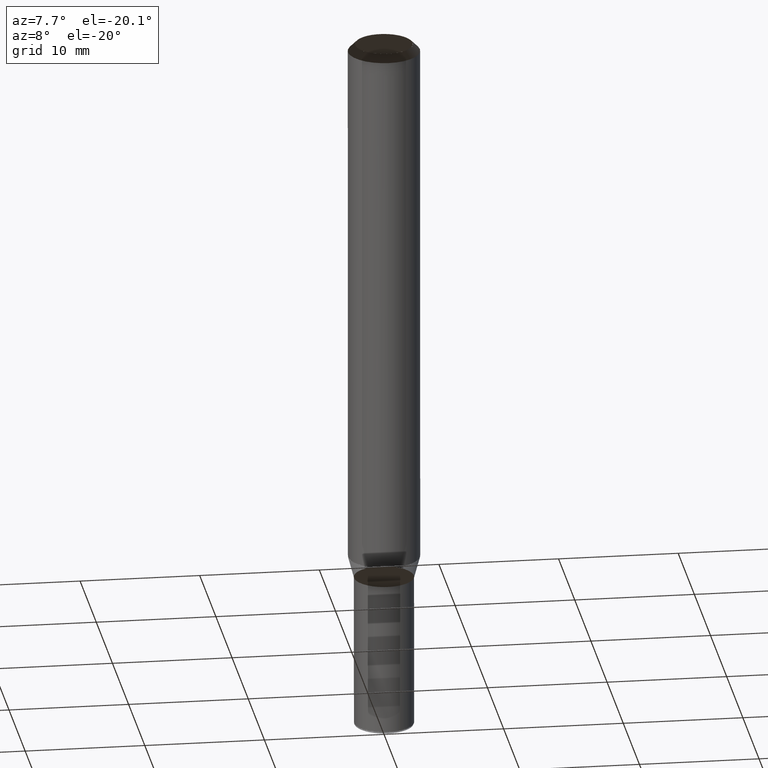
[diagram: clean part render]
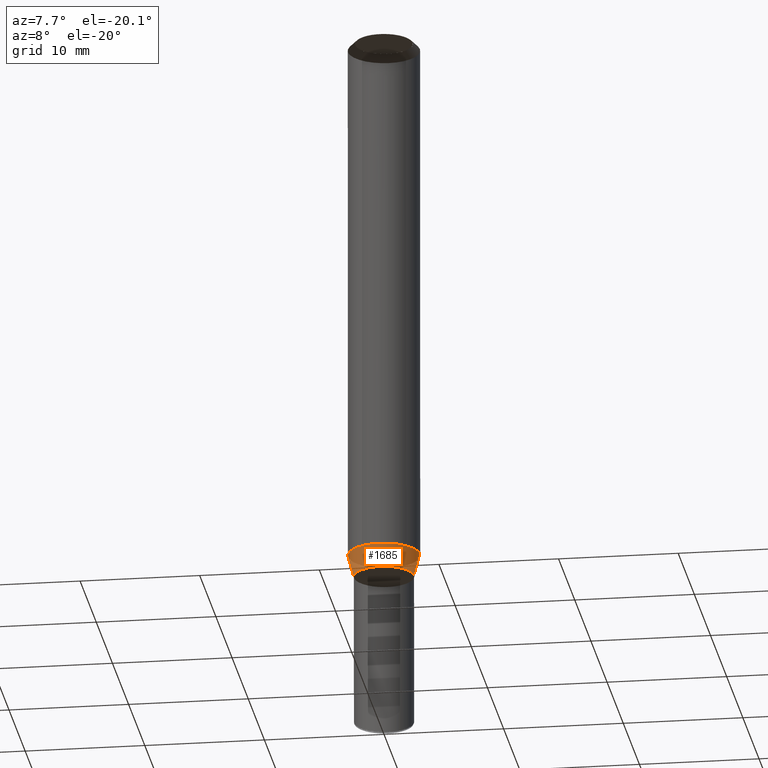
[diagram: same view with one face highlighted and labeled with its STEP entity id]
A machine part, auxiliary view. The second image highlights one B-rep face of the part: STEP entity #1685.
In plain terms, the highlighted face is a freeform B-spline surface patch.
Its self-contained STEP definition (entity closure, byte-faithful):
#1352=CARTESIAN_POINT('',(2.5,0.0,-1.866025403784));
#1356=CARTESIAN_POINT('',(-2.5,0.0,-1.866025403784));
#1373=CARTESIAN_POINT('',(-2.5,-2.5,-1.866025403784));
#1374=CARTESIAN_POINT('',(0.0,-2.5,-1.866025403784));
#1375=CARTESIAN_POINT('',(2.5,-2.5,-1.866025403784));
#1376=CARTESIAN_POINT('',(3.0,0.0,0.0));
#1380=CARTESIAN_POINT('',(-3.0,0.0,0.0));
#1392=CARTESIAN_POINT('',(-3.0,-3.0,0.0));
#1393=CARTESIAN_POINT('',(0.0,-3.0,0.0));
#1394=CARTESIAN_POINT('',(3.0,-3.0,0.0));
#1666=(
BOUNDED_SURFACE()
B_SPLINE_SURFACE(1,2,(
(#1356,#1373,#1374,#1375,#1352),
(#1380,#1392,#1393,#1394,#1376)
), .UNSPECIFIED.,.F.,.F.,.F.)
B_SPLINE_SURFACE_WITH_KNOTS((2,2),(3,2,3),(
0.0,1.0),(
0.0,0.5,1.0), .UNSPECIFIED.)
GEOMETRIC_REPRESENTATION_ITEM()
RATIONAL_B_SPLINE_SURFACE(((1.0,0.707106781187,1.0,0.707106781187,1.0),
(1.0,0.707106781187,1.0,0.707106781187,1.0)
))
REPRESENTATION_ITEM('')
SURFACE()
);
#1667=(
BOUNDED_CURVE()
B_SPLINE_CURVE(1,(#1380,#1356),.UNSPECIFIED.,.F.,.F.)
B_SPLINE_CURVE_WITH_KNOTS((2,2),
(0.0,1.0),.UNSPECIFIED.)
CURVE()
GEOMETRIC_REPRESENTATION_ITEM()
RATIONAL_B_SPLINE_CURVE((1.0,1.0))
REPRESENTATION_ITEM('')
);
#1668=(
BOUNDED_CURVE()
B_SPLINE_CURVE(2,(#1356,#1373,#1374,#1375,#1352),.UNSPECIFIED.,.F.,.F.)
B_SPLINE_CURVE_WITH_KNOTS((3,2,3),
(0.0,0.5,1.0),.UNSPECIFIED.)
CURVE()
GEOMETRIC_REPRESENTATION_ITEM()
RATIONAL_B_SPLINE_CURVE((1.0,0.707106781187,1.0,0.707106781187,1.0))
REPRESENTATION_ITEM('')
);
#1669=(
BOUNDED_CURVE()
B_SPLINE_CURVE(1,(#1352,#1376),.UNSPECIFIED.,.F.,.F.)
B_SPLINE_CURVE_WITH_KNOTS((2,2),
(0.0,1.0),.UNSPECIFIED.)
CURVE()
GEOMETRIC_REPRESENTATION_ITEM()
RATIONAL_B_SPLINE_CURVE((1.0,1.0))
REPRESENTATION_ITEM('')
);
#1670=(
BOUNDED_CURVE()
B_SPLINE_CURVE(2,(#1376,#1394,#1393,#1392,#1380),.UNSPECIFIED.,.F.,.F.)
B_SPLINE_CURVE_WITH_KNOTS((3,2,3),
(0.0,0.5,1.0),.UNSPECIFIED.)
CURVE()
GEOMETRIC_REPRESENTATION_ITEM()
RATIONAL_B_SPLINE_CURVE((1.0,0.707106781187,1.0,0.707106781187,1.0))
REPRESENTATION_ITEM('')
);
#1671=VERTEX_POINT('',#1352);
#1672=VERTEX_POINT('',#1356);
#1673=VERTEX_POINT('',#1376);
#1674=VERTEX_POINT('',#1380);
#1675=EDGE_CURVE('',#1674,#1672,#1667,.T.);
#1676=EDGE_CURVE('',#1672,#1671,#1668,.T.);
#1677=EDGE_CURVE('',#1671,#1673,#1669,.T.);
#1678=EDGE_CURVE('',#1673,#1674,#1670,.T.);
#1679=ORIENTED_EDGE('',*,*,#1675,.T.);
#1680=ORIENTED_EDGE('',*,*,#1676,.T.);
#1681=ORIENTED_EDGE('',*,*,#1677,.T.);
#1682=ORIENTED_EDGE('',*,*,#1678,.T.);
#1683=EDGE_LOOP('',(#1679,#1680,#1681,#1682));
#1684=FACE_OUTER_BOUND('',#1683,.T.);
#1685=ADVANCED_FACE('',(#1684),#1666,.T.);